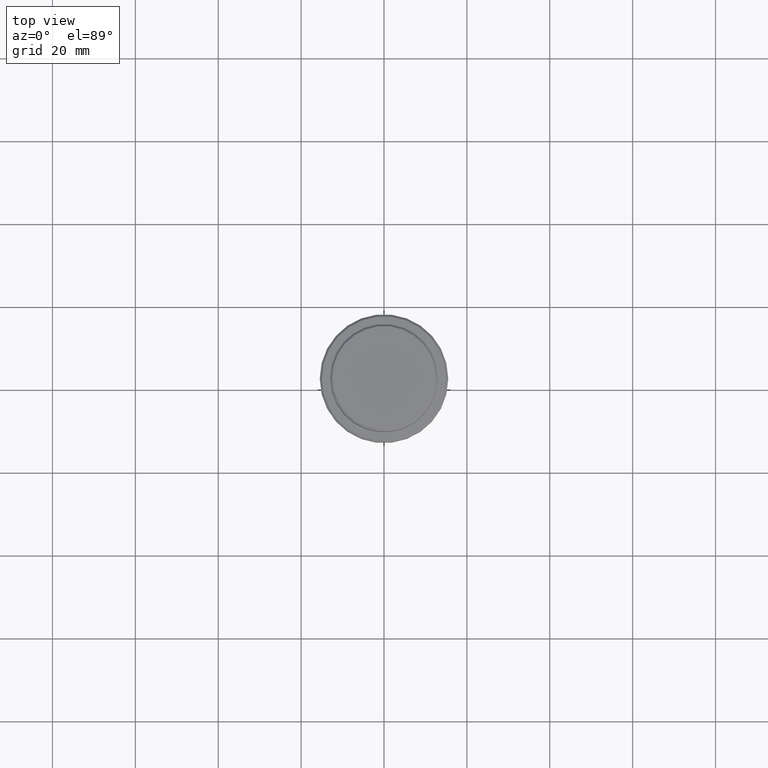
[diagram: clean part render]
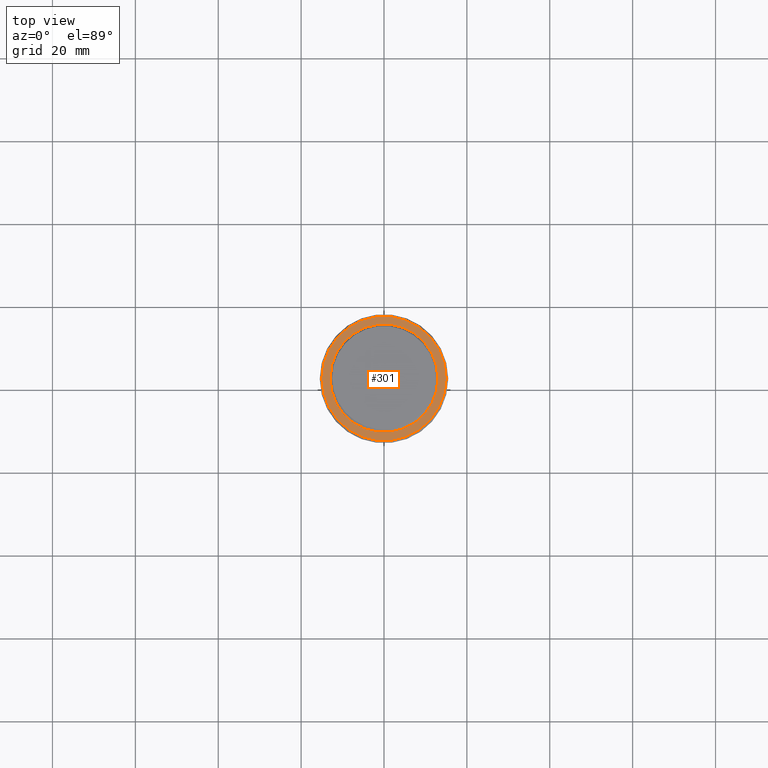
[diagram: same view with one face highlighted and labeled with its STEP entity id]
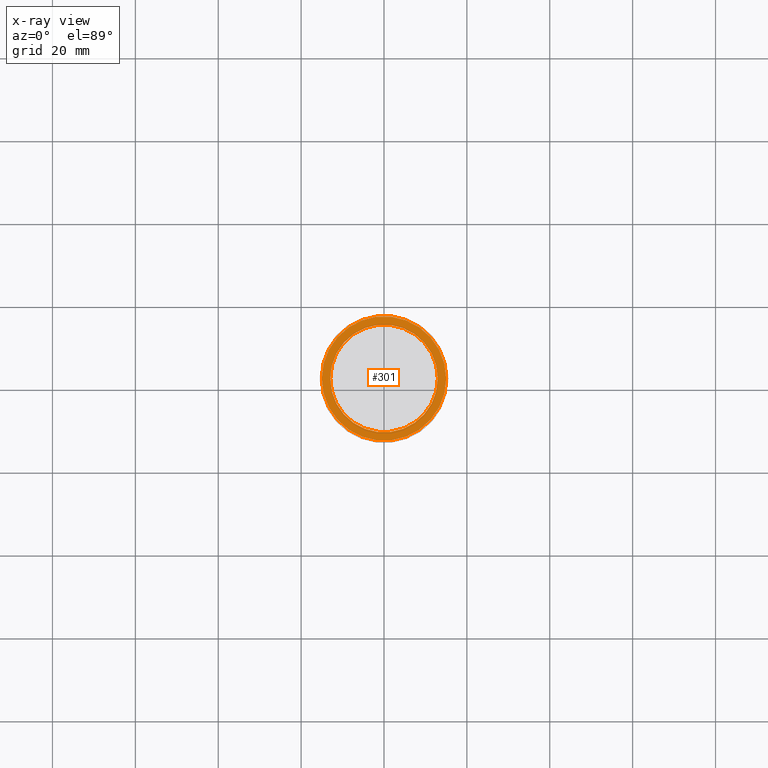
[diagram: x-ray of the same camera — body ghosted, the highlighted face saturated]
A machine part, top view. The second image highlights one B-rep face of the part: STEP entity #301.
The next image is the same camera in x-ray: the body ghosted, the highlighted face saturated — about 0% of this face is hidden behind the body in this view.
In plain terms, the highlighted planar face has unit normal (0, -0, 1).
Its self-contained STEP definition (entity closure, byte-faithful):
#26 = FACE_BOUND ( 'NONE', #499, .T. ) ;
#92 = AXIS2_PLACEMENT_3D ( 'NONE', #120, #145, #258 ) ;
#106 = EDGE_LOOP ( 'NONE', ( #952, #761 ) ) ;
#120 = CARTESIAN_POINT ( 'NONE',  ( 0.000000000000000000, 12.49999999999999289, -8.999999999999987566 ) ) ;
#145 = DIRECTION ( 'NONE',  ( 0.000000000000000000, -0.000000000000000000, 1.000000000000000000 ) ) ;
#197 = DIRECTION ( 'NONE',  ( 1.000000000000000000, 0.000000000000000000, 0.000000000000000000 ) ) ;
#258 = DIRECTION ( 'NONE',  ( 1.000000000000000000, 0.000000000000000000, 0.000000000000000000 ) ) ;
#260 = EDGE_CURVE ( 'NONE', #513, #471, #478, .T. ) ;
#263 = CARTESIAN_POINT ( 'NONE',  ( 0.000000000000000000, 0.000000000000000000, -8.999999999999987566 ) ) ;
#282 = CARTESIAN_POINT ( 'NONE',  ( -12.99999999999999467, 1.592040838891558504E-15, -8.999999999999987566 ) ) ;
#301 = ADVANCED_FACE ( 'NONE', ( #674, #26 ), #460, .T. ) ;
#307 = DIRECTION ( 'NONE',  ( 1.000000000000000000, 0.000000000000000000, 0.000000000000000000 ) ) ;
#359 = CARTESIAN_POINT ( 'NONE',  ( -14.99999999999998579, 0.000000000000000000, -8.999999999999987566 ) ) ;
#383 = DIRECTION ( 'NONE',  ( 0.000000000000000000, 0.000000000000000000, -1.000000000000000000 ) ) ;
#391 = CIRCLE ( 'NONE', #572, 14.99999999999998579 ) ;
#460 = PLANE ( 'NONE',  #92 ) ;
#471 = VERTEX_POINT ( 'NONE', #282 ) ;
#478 = CIRCLE ( 'NONE', #866, 12.99999999999999467 ) ;
#495 = CARTESIAN_POINT ( 'NONE',  ( 12.99999999999999467, 0.000000000000000000, -8.999999999999987566 ) ) ;
#499 = EDGE_LOOP ( 'NONE', ( #886, #1229 ) ) ;
#513 = VERTEX_POINT ( 'NONE', #495 ) ;
#535 = CARTESIAN_POINT ( 'NONE',  ( 0.000000000000000000, 0.000000000000000000, -8.999999999999987566 ) ) ;
#549 = CARTESIAN_POINT ( 'NONE',  ( 0.000000000000000000, 0.000000000000000000, -8.999999999999987566 ) ) ;
#572 = AXIS2_PLACEMENT_3D ( 'NONE', #723, #1157, #197 ) ;
#616 = DIRECTION ( 'NONE',  ( 1.000000000000000000, 0.000000000000000000, 0.000000000000000000 ) ) ;
#674 = FACE_OUTER_BOUND ( 'NONE', #106, .T. ) ;
#723 = CARTESIAN_POINT ( 'NONE',  ( 0.000000000000000000, 0.000000000000000000, -8.999999999999987566 ) ) ;
#761 = ORIENTED_EDGE ( 'NONE', *, *, #1193, .T. ) ;
#767 = VERTEX_POINT ( 'NONE', #359 ) ;
#866 = AXIS2_PLACEMENT_3D ( 'NONE', #535, #968, #307 ) ;
#886 = ORIENTED_EDGE ( 'NONE', *, *, #260, .T. ) ;
#916 = DIRECTION ( 'NONE',  ( -0.000000000000000000, -0.000000000000000000, 1.000000000000000000 ) ) ;
#952 = ORIENTED_EDGE ( 'NONE', *, *, #998, .T. ) ;
#968 = DIRECTION ( 'NONE',  ( 0.000000000000000000, 0.000000000000000000, -1.000000000000000000 ) ) ;
#998 = EDGE_CURVE ( 'NONE', #767, #1122, #391, .T. ) ;
#1005 = AXIS2_PLACEMENT_3D ( 'NONE', #549, #916, #1127 ) ;
#1122 = VERTEX_POINT ( 'NONE', #1385 ) ;
#1127 = DIRECTION ( 'NONE',  ( 1.000000000000000000, 0.000000000000000000, 0.000000000000000000 ) ) ;
#1145 = CIRCLE ( 'NONE', #1005, 14.99999999999998579 ) ;
#1157 = DIRECTION ( 'NONE',  ( -0.000000000000000000, -0.000000000000000000, 1.000000000000000000 ) ) ;
#1193 = EDGE_CURVE ( 'NONE', #1122, #767, #1145, .T. ) ;
#1229 = ORIENTED_EDGE ( 'NONE', *, *, #1279, .T. ) ;
#1239 = AXIS2_PLACEMENT_3D ( 'NONE', #263, #383, #616 ) ;
#1279 = EDGE_CURVE ( 'NONE', #471, #513, #1290, .T. ) ;
#1290 = CIRCLE ( 'NONE', #1239, 12.99999999999999467 ) ;
#1385 = CARTESIAN_POINT ( 'NONE',  ( 14.99999999999998579, 1.867586368699712587E-15, -8.999999999999987566 ) ) ;